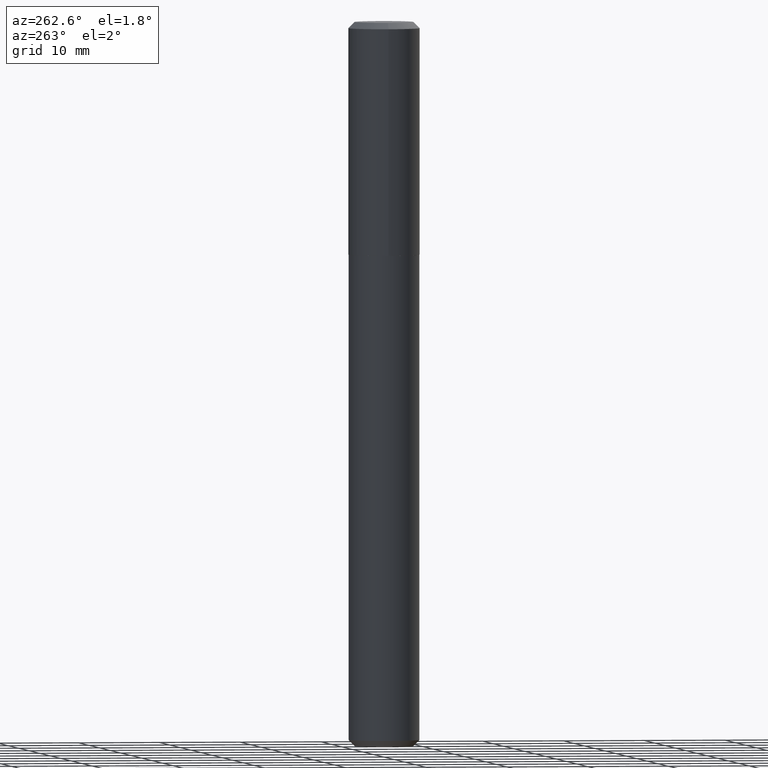
[diagram: clean part render]
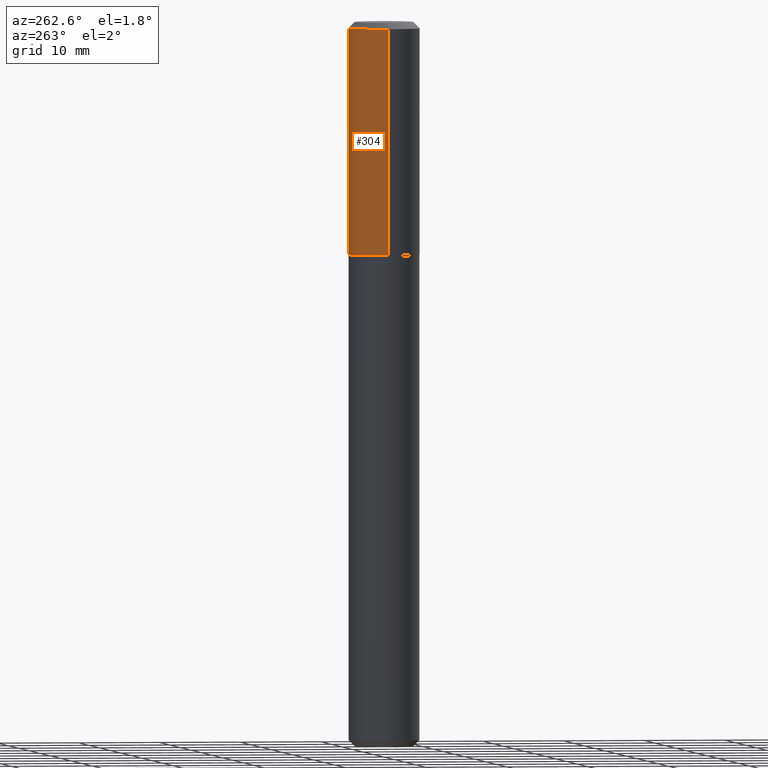
[diagram: same view with one face highlighted and labeled with its STEP entity id]
A machine part, auxiliary view. The second image highlights one B-rep face of the part: STEP entity #304.
In plain terms, the highlighted cylindrical surface (edge-blend (fillet) strip) has radius 4.3663 mm, axis along (-0, 0, 1).
Its self-contained STEP definition (entity closure, byte-faithful):
#1 = CARTESIAN_POINT ( 'NONE',  ( 0.1719000000000001083, -5.126542049823386173E-15, -1.124499999999999833 ) ) ;
#9 = CARTESIAN_POINT ( 'NONE',  ( 7.336406418555460097E-31, -1.047444401652950829E-16, -0.03000000000000020359 ) ) ;
#12 = DIRECTION ( 'NONE',  ( -2.445468806185136597E-29, 3.491481338843145583E-15, 1.000000000000000000 ) ) ;
#16 = CIRCLE ( 'NONE', #93, 0.1719000000000001083 ) ;
#25 = EDGE_CURVE ( 'NONE', #101, #168, #303, .T. ) ;
#33 = CARTESIAN_POINT ( 'NONE',  ( -0.1718999999999999695, -7.940346400755929507E-16, -0.03000000000000020359 ) ) ;
#42 = DIRECTION ( 'NONE',  ( 1.000000000000000000, -6.982962677686265922E-15, 4.876176775795935793E-29 ) ) ;
#43 = DIRECTION ( 'NONE',  ( -2.445468806185136597E-29, 3.491481338843145583E-15, 1.000000000000000000 ) ) ;
#48 = AXIS2_PLACEMENT_3D ( 'NONE', #66, #12, #42 ) ;
#66 = CARTESIAN_POINT ( 'NONE',  ( 0.000000000000000000, 0.000000000000000000, 0.000000000000000000 ) ) ;
#93 = AXIS2_PLACEMENT_3D ( 'NONE', #137, #262, #197 ) ;
#101 = VERTEX_POINT ( 'NONE', #1 ) ;
#108 = VERTEX_POINT ( 'NONE', #357 ) ;
#109 = CARTESIAN_POINT ( 'NONE',  ( -0.1719000000000000528, 1.221422962771612594E-15, -8.455649420148185982E-30 ) ) ;
#123 = VECTOR ( 'NONE', #140, 39.37007874015748143 ) ;
#134 = CYLINDRICAL_SURFACE ( 'NONE', #48, 0.1719000000000000528 ) ;
#137 = CARTESIAN_POINT ( 'NONE',  ( 2.749929672555185870E-29, -3.926170765529116932E-15, -1.124499999999999833 ) ) ;
#140 = DIRECTION ( 'NONE',  ( -2.445468806185136877E-29, 3.491481338843145188E-15, 1.000000000000000000 ) ) ;
#141 = FACE_OUTER_BOUND ( 'NONE', #358, .T. ) ;
#145 = VERTEX_POINT ( 'NONE', #33 ) ;
#168 = VERTEX_POINT ( 'NONE', #309 ) ;
#196 = ORIENTED_EDGE ( 'NONE', *, *, #308, .T. ) ;
#197 = DIRECTION ( 'NONE',  ( 1.000000000000000000, -6.982962677686265922E-15, 0.000000000000000000 ) ) ;
#204 = DIRECTION ( 'NONE',  ( 1.000000000000000000, -6.982962677686266711E-15, 0.000000000000000000 ) ) ;
#206 = VECTOR ( 'NONE', #372, 39.37007874015748143 ) ;
#208 = ORIENTED_EDGE ( 'NONE', *, *, #25, .F. ) ;
#213 = CARTESIAN_POINT ( 'NONE',  ( 0.1719000000000000528, -1.200371284294269438E-15, 8.382147877593215881E-30 ) ) ;
#240 = ORIENTED_EDGE ( 'NONE', *, *, #280, .T. ) ;
#262 = DIRECTION ( 'NONE',  ( -2.445468806185136597E-29, 3.491481338843145583E-15, 1.000000000000000000 ) ) ;
#269 = EDGE_CURVE ( 'NONE', #168, #145, #391, .T. ) ;
#280 = EDGE_CURVE ( 'NONE', #101, #108, #16, .T. ) ;
#291 = LINE ( 'NONE', #109, #123 ) ;
#303 = LINE ( 'NONE', #213, #206 ) ;
#304 = ADVANCED_FACE ( 'NONE', ( #141 ), #134, .T. ) ;
#308 = EDGE_CURVE ( 'NONE', #108, #145, #291, .T. ) ;
#309 = CARTESIAN_POINT ( 'NONE',  ( 0.1718999999999999695, -1.305115724459563991E-15, -0.03000000000000020359 ) ) ;
#357 = CARTESIAN_POINT ( 'NONE',  ( -0.1719000000000001083, -2.704747802757503943E-15, -1.124499999999999833 ) ) ;
#358 = EDGE_LOOP ( 'NONE', ( #240, #196, #396, #208 ) ) ;
#372 = DIRECTION ( 'NONE',  ( -2.445468806185136877E-29, 3.491481338843145188E-15, 1.000000000000000000 ) ) ;
#391 = CIRCLE ( 'NONE', #402, 0.1718999999999999695 ) ;
#396 = ORIENTED_EDGE ( 'NONE', *, *, #269, .F. ) ;
#402 = AXIS2_PLACEMENT_3D ( 'NONE', #9, #43, #204 ) ;